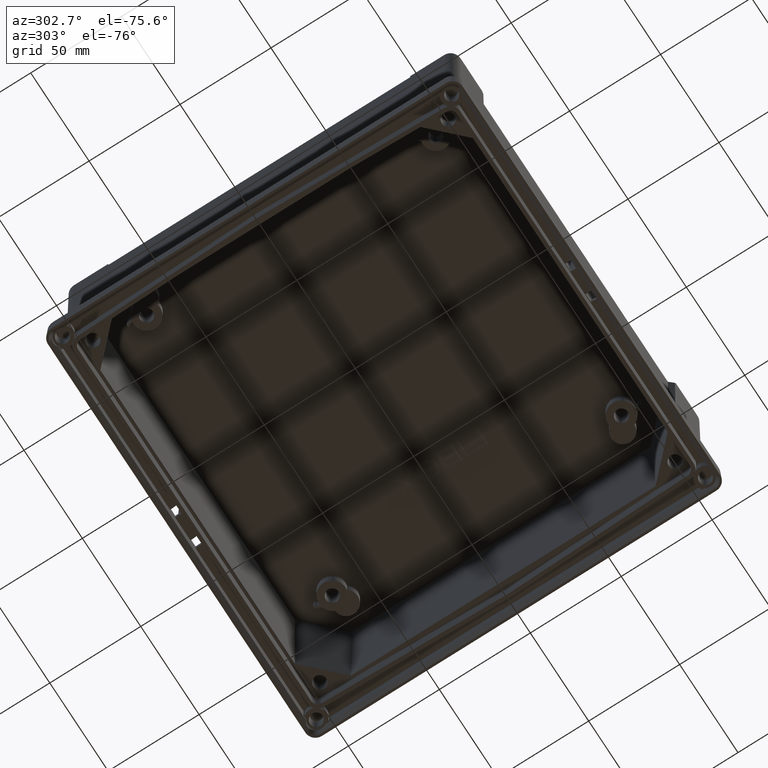
[diagram: clean part render]
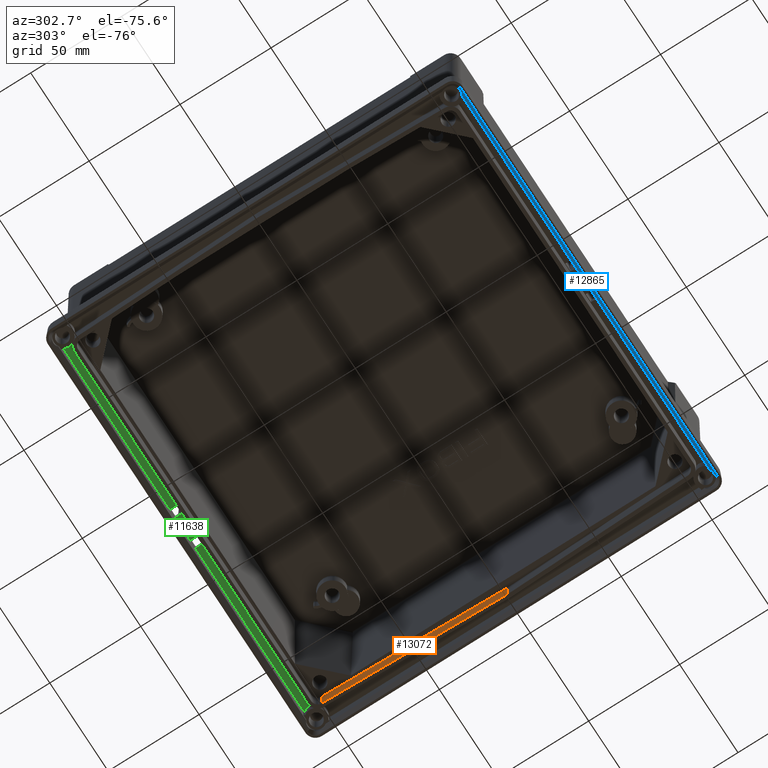
[diagram: same view with three faces highlighted in distinct colors, each labeled with its STEP entity id]
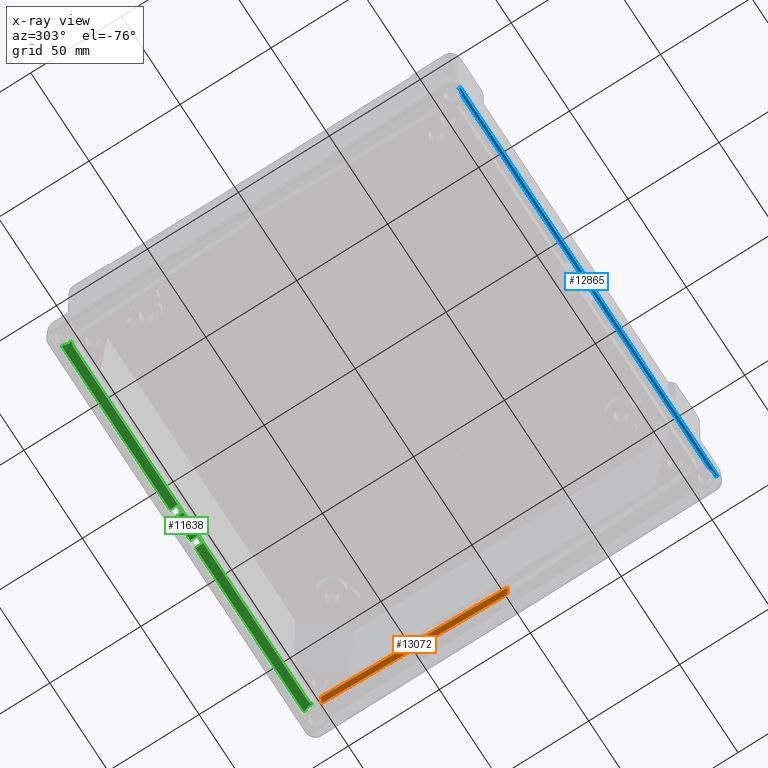
[diagram: x-ray of the same camera — body ghosted, the three highlighted faces saturated]
A machine part, auxiliary view with three faces highlighted in distinct colors.
The next image is the same camera in x-ray (body ghosted, the three faces saturated) — at least one of them is partly hidden behind the body in this view.
Their STEP definitions:

[orange] entity #13072 — the highlighted planar face has unit normal (-0.9997, -0.0262, 0).
#8561 = DIRECTION ( 'NONE',  ( 0.02617694830787311400, -0.9996573249755572600, 0.0000000000000000000 ) ) ;
#8562 = VECTOR ( 'NONE', #8561, 1000.000000000000200 ) ;
#8563 = CARTESIAN_POINT ( 'NONE',  ( 79.29034707335566200, 50.35230874206308700, 3.599999999999999600 ) ) ;
#8564 = LINE ( 'NONE', #8563, #8562 ) ;
#8565 = DIRECTION ( 'NONE',  ( 0.02617694830787310700, -0.9996573249755572600, 0.0000000000000000000 ) ) ;
#8566 = DIRECTION ( 'NONE',  ( -0.9996573249755573700, -0.02617694830787311100, 0.0000000000000000000 ) ) ;
#8567 = AXIS2_PLACEMENT_3D ( 'NONE', #8568, #8566, #8565 ) ;
#8568 = CARTESIAN_POINT ( 'NONE',  ( 77.97182546580852100, 100.7046174841261900, 3.599999999999999600 ) ) ;
#8569 = PLANE ( 'NONE',  #8567 ) ;
#8570 = FACE_OUTER_BOUND ( 'NONE', #13073, .T. ) ;
#8575 = CARTESIAN_POINT ( 'NONE',  ( 80.60886868090281600, 8.883809777978974200E-016, 3.599999999999999600 ) ) ;
#8576 = DIRECTION ( 'NONE',  ( 0.0000000000000000000, 5.828898570632487500E-016, 1.000000000000000000 ) ) ;
#8577 = VECTOR ( 'NONE', #8576, 1000.000000000000000 ) ;
#8578 = CARTESIAN_POINT ( 'NONE',  ( 80.60886868090281600, 3.552713678800500900E-015, 9.694999999999998500 ) ) ;
#8579 = LINE ( 'NONE', #8578, #8577 ) ;
#8580 = CARTESIAN_POINT ( 'NONE',  ( 80.60886868090281600, 7.105427357601001900E-015, 15.78999999999999900 ) ) ;
#8717 = CARTESIAN_POINT ( 'NONE',  ( 77.97182546580852100, 100.7046174841261700, 3.599999999999999200 ) ) ;
#8719 = LINE ( 'NONE', #8774, #8773 ) ;
#8767 = DIRECTION ( 'NONE',  ( 0.0000000000000000000, -1.138456752076657800E-015, 1.000000000000000000 ) ) ;
#8768 = VECTOR ( 'NONE', #8767, 1000.000000000000000 ) ;
#8769 = CARTESIAN_POINT ( 'NONE',  ( 77.97182546580852100, 100.7046174841261700, 9.694999999999998500 ) ) ;
#8770 = LINE ( 'NONE', #8769, #8768 ) ;
#8771 = CARTESIAN_POINT ( 'NONE',  ( 77.97182546580852100, 100.7046174841261700, 15.78999999999999900 ) ) ;
#8772 = DIRECTION ( 'NONE',  ( 0.02617694830787325700, -0.9996573249755572600, 0.0000000000000000000 ) ) ;
#8773 = VECTOR ( 'NONE', #8772, 1000.000000000000200 ) ;
#8774 = CARTESIAN_POINT ( 'NONE',  ( 79.29034707335566200, 50.35230874206309400, 15.78999999999999900 ) ) ;
#13065 = VERTEX_POINT ( 'NONE', #8580 ) ;
#13067 = EDGE_CURVE ( 'NONE', #13068, #13065, #8579, .T. ) ;
#13068 = VERTEX_POINT ( 'NONE', #8575 ) ;
#13072 = ADVANCED_FACE ( 'NONE', ( #8570 ), #8569, .T. ) ;
#13073 = EDGE_LOOP ( 'NONE', ( #13074, #13131, #13132, #13135 ) ) ;
#13074 = ORIENTED_EDGE ( 'NONE', *, *, #13075, .T. ) ;
#13075 = EDGE_CURVE ( 'NONE', #13130, #13068, #8564, .T. ) ;
#13130 = VERTEX_POINT ( 'NONE', #8717 ) ;
#13131 = ORIENTED_EDGE ( 'NONE', *, *, #13067, .T. ) ;
#13132 = ORIENTED_EDGE ( 'NONE', *, *, #13133, .F. ) ;
#13133 = EDGE_CURVE ( 'NONE', #13134, #13065, #8719, .T. ) ;
#13134 = VERTEX_POINT ( 'NONE', #8771 ) ;
#13135 = ORIENTED_EDGE ( 'NONE', *, *, #13136, .F. ) ;
#13136 = EDGE_CURVE ( 'NONE', #13130, #13134, #8770, .T. ) ;

[blue] entity #12865 — the highlighted planar face has unit normal (0, 0.829, -0.5592).
#6326 = CARTESIAN_POINT ( 'NONE',  ( 84.90335045139383400, -111.5451771669170000, 1.860351354709297800 ) ) ;
#6330 = CARTESIAN_POINT ( 'NONE',  ( 84.90335045139383400, -111.5451771669170000, 1.860351354709297800 ) ) ;
#6331 = CARTESIAN_POINT ( 'NONE',  ( 84.55252322552212300, -111.6644673196975200, 1.683496430258574000 ) ) ;
#6332 = CARTESIAN_POINT ( 'NONE',  ( 84.16416472718688600, -111.7484585158678700, 1.558974361186768800 ) ) ;
#6333 = CARTESIAN_POINT ( 'NONE',  ( 83.56092056206469500, -111.7953636714809100, 1.489434608252806500 ) ) ;
#6334 = CARTESIAN_POINT ( 'NONE',  ( 83.35334270316539600, -111.7979291504017600, 1.485631129264900700 ) ) ;
#6335 = CARTESIAN_POINT ( 'NONE',  ( 82.94927175533483400, -111.7763792302102800, 1.517580199815235000 ) ) ;
#6336 = CARTESIAN_POINT ( 'NONE',  ( 82.75038447002431500, -111.7526251245848500, 1.552797109697054100 ) ) ;
#6337 = CARTESIAN_POINT ( 'NONE',  ( 82.36034360970984400, -111.6808942344339100, 1.659142527671443100 ) ) ;
#6338 = CARTESIAN_POINT ( 'NONE',  ( 82.17550206766918600, -111.6341794351187100, 1.728400065793662900 ) ) ;
#6339 = CARTESIAN_POINT ( 'NONE',  ( 81.82236517597664300, -111.5231137744263500, 1.893061679278287900 ) ) ;
#6340 = CARTESIAN_POINT ( 'NONE',  ( 81.65297031223744300, -111.4581890851550700, 1.989316489506557800 ) ) ;
#6341 = CARTESIAN_POINT ( 'NONE',  ( 81.17533392175380400, -111.2446202327913800, 2.305945334111033000 ) ) ;
#6342 = CARTESIAN_POINT ( 'NONE',  ( 80.89827966475753800, -111.0791519151598100, 2.551262203304325300 ) ) ;
#6343 = CARTESIAN_POINT ( 'NONE',  ( 80.64953087988762100, -110.8978859825032700, 2.819999999991779700 ) ) ;
#6344 = B_SPLINE_CURVE_WITH_KNOTS ( 'NONE', 3,
 ( #6343, #6342, #6341, #6340, #6339, #6338, #6337, #6336, #6335, #6334, #6333, #6332, #6331, #6330 ),
 .UNSPECIFIED., .F., .F.,
 ( 4, 2, 2, 2, 2, 2, 4 ),
 ( 3.791536716063408000E-015, 0.001215469552151673200, 0.001823204328225606300, 0.002430939104299539900, 0.003038673880373472900, 0.003646408656447406300, 0.004861878208595234900 ),
 .UNSPECIFIED. ) ;
#6382 = CARTESIAN_POINT ( 'NONE',  ( 80.64953087988762100, -110.8978859825032700, 2.819999999991779700 ) ) ;
#6593 = CARTESIAN_POINT ( 'NONE',  ( 84.90335140398063600, -112.7999999999997800, -8.131516293641283300E-016 ) ) ;
#6824 = DIRECTION ( 'NONE',  ( 4.947541758675265800E-014, -0.5591929034707454600, -0.8290375725550425100 ) ) ;
#6825 = VECTOR ( 'NONE', #6824, 1000.000000000000200 ) ;
#6826 = CARTESIAN_POINT ( 'NONE',  ( 84.90335045139494200, -112.1725885834600400, 0.9301756773614312500 ) ) ;
#6831 = LINE ( 'NONE', #6826, #6825 ) ;
#7426 = CARTESIAN_POINT ( 'NONE',  ( -131.2495308798876000, -110.8978859825032400, 2.819999999991805500 ) ) ;
#7653 = CARTESIAN_POINT ( 'NONE',  ( -132.9603436097099800, -111.6808942344339500, 1.659142527671441300 ) ) ;
#7654 = CARTESIAN_POINT ( 'NONE',  ( -132.7755020676692900, -111.6341794351187500, 1.728400065793667600 ) ) ;
#7655 = CARTESIAN_POINT ( 'NONE',  ( -132.4223651759766900, -111.5231137744263800, 1.893061679278290800 ) ) ;
#7656 = CARTESIAN_POINT ( 'NONE',  ( -132.2529703122374900, -111.4581890851551100, 1.989316489506565100 ) ) ;
#7657 = CARTESIAN_POINT ( 'NONE',  ( -131.7753339217538000, -111.2446202327914100, 2.305945334111039200 ) ) ;
#7658 = CARTESIAN_POINT ( 'NONE',  ( -131.4982796647575500, -111.0791519151598000, 2.551262203304320400 ) ) ;
#7659 = CARTESIAN_POINT ( 'NONE',  ( -131.2495308798876000, -110.8978859825032400, 2.819999999991805500 ) ) ;
#7661 = B_SPLINE_CURVE_WITH_KNOTS ( 'NONE', 3,
 ( #7659, #7658, #7657, #7656, #7655, #7654, #7653, #7709, #7708, #7707, #7706, #7705, #7704, #7703 ),
 .UNSPECIFIED., .F., .F.,
 ( 4, 2, 2, 2, 2, 2, 4 ),
 ( 3.819311272448363800E-015, 0.001215469552151777900, 0.001823204328225717600, 0.002430939104299657900, 0.003038673880373597800, 0.003646408656447537200, 0.004861878208595337200 ),
 .UNSPECIFIED. ) ;
#7662 = CARTESIAN_POINT ( 'NONE',  ( -135.5033504513939400, -111.5451771669202800, 1.860351354711532700 ) ) ;
#7703 = CARTESIAN_POINT ( 'NONE',  ( -135.5033504513939400, -111.5451771669202800, 1.860351354711532700 ) ) ;
#7704 = CARTESIAN_POINT ( 'NONE',  ( -135.1525232255223700, -111.6644673197040900, 1.683496430263007800 ) ) ;
#7705 = CARTESIAN_POINT ( 'NONE',  ( -134.7641647271869400, -111.7484585158678500, 1.558974361186780300 ) ) ;
#7706 = CARTESIAN_POINT ( 'NONE',  ( -134.1609205620647500, -111.7953636714809100, 1.489434608252800500 ) ) ;
#7707 = CARTESIAN_POINT ( 'NONE',  ( -133.9533427031654200, -111.7979291504017100, 1.485631129264906000 ) ) ;
#7708 = CARTESIAN_POINT ( 'NONE',  ( -133.5492717553349300, -111.7763792302103100, 1.517580199815229800 ) ) ;
#7709 = CARTESIAN_POINT ( 'NONE',  ( -133.3503844700243500, -111.7526251245848000, 1.552797109697056500 ) ) ;
#8127 = DIRECTION ( 'NONE',  ( -1.000000000000000000, 6.549244575489085000E-017, 5.116597324600847600E-017 ) ) ;
#8128 = VECTOR ( 'NONE', #8127, 1000.000000000000000 ) ;
#8129 = CARTESIAN_POINT ( 'NONE',  ( -25.30000000000000400, -110.8978859825043600, 2.819999999999991000 ) ) ;
#8130 = LINE ( 'NONE', #8129, #8128 ) ;
#8135 = DIRECTION ( 'NONE',  ( 0.0000000000000000000, -0.5591929034707452400, -0.8290375725550426200 ) ) ;
#8136 = VECTOR ( 'NONE', #8135, 1000.000000000000200 ) ;
#8137 = CARTESIAN_POINT ( 'NONE',  ( -135.5033504513949700, -112.1725885834600400, 0.9301756773614424700 ) ) ;
#8141 = LINE ( 'NONE', #8137, #8136 ) ;
#8161 = CARTESIAN_POINT ( 'NONE',  ( -135.5033514039806200, -112.8000000000000000, 5.421010862427522200E-017 ) ) ;
#8162 = DIRECTION ( 'NONE',  ( 0.0000000000000000000, 0.5591929034707464600, 0.8290375725550419600 ) ) ;
#8163 = DIRECTION ( 'NONE',  ( 0.0000000000000000000, 0.8290375725550419600, -0.5591929034707464600 ) ) ;
#8164 = AXIS2_PLACEMENT_3D ( 'NONE', #8166, #8163, #8162 ) ;
#8166 = CARTESIAN_POINT ( 'NONE',  ( 135.5033504513949700, -110.8978859825043500, 2.819999999999999800 ) ) ;
#8167 = PLANE ( 'NONE',  #8164 ) ;
#8168 = FACE_OUTER_BOUND ( 'NONE', #12866, .T. ) ;
#8335 = LINE ( 'NONE', #8379, #8378 ) ;
#8377 = DIRECTION ( 'NONE',  ( -1.000000000000000000, 0.0000000000000000000, 0.0000000000000000000 ) ) ;
#8378 = VECTOR ( 'NONE', #8377, 1000.000000000000000 ) ;
#8379 = CARTESIAN_POINT ( 'NONE',  ( -25.29999999999999700, -112.8000000000000000, 0.0000000000000000000 ) ) ;
#12160 = VERTEX_POINT ( 'NONE', #6326 ) ;
#12162 = EDGE_CURVE ( 'NONE', #12176, #12160, #6344, .T. ) ;
#12176 = VERTEX_POINT ( 'NONE', #6382 ) ;
#12251 = VERTEX_POINT ( 'NONE', #6593 ) ;
#12312 = EDGE_CURVE ( 'NONE', #12160, #12251, #6831, .T. ) ;
#12564 = VERTEX_POINT ( 'NONE', #7426 ) ;
#12620 = EDGE_CURVE ( 'NONE', #12564, #12621, #7661, .T. ) ;
#12621 = VERTEX_POINT ( 'NONE', #7662 ) ;
#12828 = EDGE_CURVE ( 'NONE', #12176, #12564, #8130, .T. ) ;
#12859 = EDGE_CURVE ( 'NONE', #12621, #12881, #8141, .T. ) ;
#12865 = ADVANCED_FACE ( 'NONE', ( #8168 ), #8167, .T. ) ;
#12866 = EDGE_LOOP ( 'NONE', ( #12867, #12868, #12869, #12930, #12932, #12933 ) ) ;
#12867 = ORIENTED_EDGE ( 'NONE', *, *, #12828, .F. ) ;
#12868 = ORIENTED_EDGE ( 'NONE', *, *, #12162, .T. ) ;
#12869 = ORIENTED_EDGE ( 'NONE', *, *, #12312, .T. ) ;
#12881 = VERTEX_POINT ( 'NONE', #8161 ) ;
#12930 = ORIENTED_EDGE ( 'NONE', *, *, #12931, .T. ) ;
#12931 = EDGE_CURVE ( 'NONE', #12251, #12881, #8335, .T. ) ;
#12932 = ORIENTED_EDGE ( 'NONE', *, *, #12859, .F. ) ;
#12933 = ORIENTED_EDGE ( 'NONE', *, *, #12620, .F. ) ;

[green] entity #11638 — the highlighted planar face has unit normal (0, -0.2079, -0.9781).
#40 = VERTEX_POINT ( 'NONE', #14231 ) ;
#42 = EDGE_CURVE ( 'NONE', #40, #17048, #14230, .T. ) ;
#523 = CARTESIAN_POINT ( 'NONE',  ( 77.75596629610157600, 105.5572010452466000, 11.59804330927611800 ) ) ;
#642 = CARTESIAN_POINT ( 'NONE',  ( 78.00948076974518100, 109.2043985421325900, 10.82280754959379900 ) ) ;
#643 = CARTESIAN_POINT ( 'NONE',  ( 77.77039022681962900, 108.5016256978360900, 10.97218652901254800 ) ) ;
#644 = CARTESIAN_POINT ( 'NONE',  ( 77.68492911141781600, 108.1411990556428200, 11.04879757684937200 ) ) ;
#645 = CARTESIAN_POINT ( 'NONE',  ( 77.60866272830584500, 107.5867868268215500, 11.16664153395544900 ) ) ;
#646 = CARTESIAN_POINT ( 'NONE',  ( 77.59204033688995100, 107.3992833885582200, 11.20649662006544400 ) ) ;
#647 = CARTESIAN_POINT ( 'NONE',  ( 77.57701752277732500, 107.0274577344686100, 11.28553060263944600 ) ) ;
#648 = CARTESIAN_POINT ( 'NONE',  ( 77.57844058884229800, 106.8421820240550900, 11.32491217064648800 ) ) ;
#649 = CARTESIAN_POINT ( 'NONE',  ( 77.60902648905454300, 106.2882315349130800, 11.44265798195394100 ) ) ;
#650 = CARTESIAN_POINT ( 'NONE',  ( 77.66425595328776400, 105.9214155656787000, 11.52062712310172900 ) ) ;
#651 = CARTESIAN_POINT ( 'NONE',  ( 77.75596629610157600, 105.5572010452466000, 11.59804330927611800 ) ) ;
#656 = B_SPLINE_CURVE_WITH_KNOTS ( 'NONE', 3,
 ( #651, #650, #649, #648, #647, #646, #645, #644, #643, #642, #701, #700 ),
 .UNSPECIFIED., .F., .F.,
 ( 4, 2, 2, 2, 2, 4 ),
 ( 7.400603605116668900E-016, 0.001134101956673470000, 0.001701152935009814600, 0.002268203913346159400, 0.003402305870018888500, 0.004536407826691618100 ),
 .UNSPECIFIED. ) ;
#700 = CARTESIAN_POINT ( 'NONE',  ( 78.35228672576585000, 109.8759250097094900, 10.68007019334034700 ) ) ;
#701 = CARTESIAN_POINT ( 'NONE',  ( 78.16452704401409300, 109.5488279130070700, 10.74959682685480700 ) ) ;
#1163 = CARTESIAN_POINT ( 'NONE',  ( 77.92467003382965600, 110.6289960574179100, 10.52000000000000000 ) ) ;
#1164 = CARTESIAN_POINT ( 'NONE',  ( 78.01408164276404000, 110.6289960647016500, 10.51999999845179600 ) ) ;
#1165 = CARTESIAN_POINT ( 'NONE',  ( 78.10168205599880800, 110.6045321676444800, 10.52519996029530900 ) ) ;
#1166 = CARTESIAN_POINT ( 'NONE',  ( 78.25223353604498300, 110.5151563555398200, 10.54419737561274500 ) ) ;
#1167 = CARTESIAN_POINT ( 'NONE',  ( 78.31502671502750000, 110.4502692668890700, 10.55798955207313300 ) ) ;
#1168 = CARTESIAN_POINT ( 'NONE',  ( 78.44230510618389500, 110.2200841701985300, 10.60691690477333900 ) ) ;
#1169 = CARTESIAN_POINT ( 'NONE',  ( 78.43976131508894400, 110.0283149498582600, 10.64767871088301600 ) ) ;
#1170 = CARTESIAN_POINT ( 'NONE',  ( 78.35228672576585000, 109.8759250097094900, 10.68007019334034700 ) ) ;
#1171 = B_SPLINE_CURVE_WITH_KNOTS ( 'NONE', 3,
 ( #1170, #1169, #1168, #1167, #1166, #1165, #1164, #1163 ),
 .UNSPECIFIED., .F., .F.,
 ( 4, 2, 2, 4 ),
 ( 2.198831107213662000E-012, 0.0005283641947736899300, 0.0007925462910611194200, 0.001056728387348548900 ),
 .UNSPECIFIED. ) ;
#1200 = CARTESIAN_POINT ( 'NONE',  ( 78.35228672576585000, 109.8759250097094900, 10.68007019334034700 ) ) ;
#1861 = CARTESIAN_POINT ( 'NONE',  ( 77.92467003382965600, 110.6289960574179100, 10.52000000000000000 ) ) ;
#2547 = CARTESIAN_POINT ( 'NONE',  ( -14.32370143678608100, 110.6289960574178900, 10.52000000000000100 ) ) ;
#2607 = DIRECTION ( 'NONE',  ( -1.000000000000000000, 0.0000000000000000000, 0.0000000000000000000 ) ) ;
#2608 = VECTOR ( 'NONE', #2607, 1000.000000000000000 ) ;
#2609 = CARTESIAN_POINT ( 'NONE',  ( -16.55000000000000800, 106.6944970723780700, 11.35630357615425900 ) ) ;
#2610 = LINE ( 'NONE', #2609, #2608 ) ;
#2642 = CARTESIAN_POINT ( 'NONE',  ( -18.80550292762194400, 106.6944970723780700, 11.35630357615425900 ) ) ;
#2726 = CARTESIAN_POINT ( 'NONE',  ( -14.29449707237807800, 106.6944970723780700, 11.35630357615425900 ) ) ;
#2731 = DIRECTION ( 'NONE',  ( 0.007260244874171455600, -0.9781218207488707700, 0.2079062111128020800 ) ) ;
#2732 = VECTOR ( 'NONE', #2731, 1000.000000000000100 ) ;
#2733 = CARTESIAN_POINT ( 'NONE',  ( -14.30909925458208000, 108.6617465648980000, 10.93815178807713200 ) ) ;
#2734 = LINE ( 'NONE', #2733, #2732 ) ;
#2778 = DIRECTION ( 'NONE',  ( -0.007260244874171455600, -0.9781218207488707700, 0.2079062111128020800 ) ) ;
#2779 = VECTOR ( 'NONE', #2778, 1000.000000000000100 ) ;
#2780 = CARTESIAN_POINT ( 'NONE',  ( -18.79090074541794300, 108.6617465648980000, 10.93815178807713200 ) ) ;
#2781 = LINE ( 'NONE', #2780, #2779 ) ;
#2783 = CARTESIAN_POINT ( 'NONE',  ( -18.77629856321394200, 110.6289960574178900, 10.52000000000000100 ) ) ;
#2972 = DIRECTION ( 'NONE',  ( 0.007260244874171455600, -0.9781218207488707700, 0.2079062111128020800 ) ) ;
#2973 = VECTOR ( 'NONE', #2972, 1000.000000000000100 ) ;
#2974 = CARTESIAN_POINT ( 'NONE',  ( -31.70909925458208200, 108.6617465648980000, 10.93815178807713200 ) ) ;
#2975 = LINE ( 'NONE', #2974, #2973 ) ;
#3007 = CARTESIAN_POINT ( 'NONE',  ( -31.69449707237808400, 106.6944970723780700, 11.35630357615425900 ) ) ;
#3048 = CARTESIAN_POINT ( 'NONE',  ( -31.72370143678608700, 110.6289960574178900, 10.52000000000000100 ) ) ;
#3098 = DIRECTION ( 'NONE',  ( -1.000000000000000000, 0.0000000000000000000, 0.0000000000000000000 ) ) ;
#3099 = VECTOR ( 'NONE', #3098, 1000.000000000000000 ) ;
#3100 = CARTESIAN_POINT ( 'NONE',  ( -33.95000000000002400, 106.6944970723780700, 11.35630357615425900 ) ) ;
#3101 = LINE ( 'NONE', #3100, #3099 ) ;
#3106 = CARTESIAN_POINT ( 'NONE',  ( -36.20550292762195000, 106.6944970723780700, 11.35630357615425900 ) ) ;
#4022 = VERTEX_POINT ( 'NONE', #14457 ) ;
#4104 = EDGE_CURVE ( 'NONE', #15719, #4022, #14624, .T. ) ;
#4926 = CARTESIAN_POINT ( 'NONE',  ( -128.5246732795710000, 110.6289960640745600, 10.52000001808233900 ) ) ;
#5112 = B_SPLINE_CURVE_WITH_KNOTS ( 'NONE', 3,
 ( #5153, #5152, #5151, #5150, #5149, #5148, #5147, #5146 ),
 .UNSPECIFIED., .F., .F.,
 ( 4, 2, 2, 4 ),
 ( 0.0000000000000000000, 0.0005283640478878339100, 0.0007925460718317699000, 0.001056728095775706000 ),
 .UNSPECIFIED. ) ;
#5146 = CARTESIAN_POINT ( 'NONE',  ( -128.5246732795710000, 110.6289960640745600, 10.52000001808233900 ) ) ;
#5147 = CARTESIAN_POINT ( 'NONE',  ( -128.6140816182804100, 110.6289960647017100, 10.51999999845180200 ) ) ;
#5148 = CARTESIAN_POINT ( 'NONE',  ( -128.7016822842995800, 110.6045320771065000, 10.52519997953975100 ) ) ;
#5149 = CARTESIAN_POINT ( 'NONE',  ( -128.8522336825460300, 110.5151562235742800, 10.54419740366289400 ) ) ;
#5150 = CARTESIAN_POINT ( 'NONE',  ( -128.9150268221390000, 110.4502691263095400, 10.55798958195424000 ) ) ;
#5151 = CARTESIAN_POINT ( 'NONE',  ( -129.0423051042625100, 110.2200840674073100, 10.60691692662230200 ) ) ;
#5152 = CARTESIAN_POINT ( 'NONE',  ( -129.0397612911352200, 110.0283149081278000, 10.64767871975311800 ) ) ;
#5153 = CARTESIAN_POINT ( 'NONE',  ( -128.9522853025134200, 109.8759225137053500, 10.68007074908013700 ) ) ;
#5154 = CARTESIAN_POINT ( 'NONE',  ( -128.9522853025134200, 109.8759225137053500, 10.68007074908013700 ) ) ;
#5228 = CARTESIAN_POINT ( 'NONE',  ( -128.3559662961005800, 105.5572010452471000, 11.59804330927857100 ) ) ;
#5229 = CARTESIAN_POINT ( 'NONE',  ( -128.3559662961005800, 105.5572010452471000, 11.59804330927857100 ) ) ;
#5230 = B_SPLINE_CURVE_WITH_KNOTS ( 'NONE', 3,
 ( #5228, #5271, #5270, #5269, #5268, #5267, #5266, #5265, #5264, #5263, #5262, #5261 ),
 .UNSPECIFIED., .F., .F.,
 ( 4, 2, 2, 2, 2, 4 ),
 ( 6.406745034707793200E-016, 0.001134101236421894400, 0.001701151854632501200, 0.002268202472843108000, 0.003402303709264321900, 0.004536404945685535900 ),
 .UNSPECIFIED. ) ;
#5261 = CARTESIAN_POINT ( 'NONE',  ( -128.9522853025134200, 109.8759225137053500, 10.68007074908013700 ) ) ;
#5262 = CARTESIAN_POINT ( 'NONE',  ( -128.7645258991610100, 109.5488255444073900, 10.74959733026133100 ) ) ;
#5263 = CARTESIAN_POINT ( 'NONE',  ( -128.6094798794540000, 109.2043963452933500, 10.82280801652579400 ) ) ;
#5264 = CARTESIAN_POINT ( 'NONE',  ( -128.3703897505252800, 108.5016238777857900, 10.97218691585556100 ) ) ;
#5265 = CARTESIAN_POINT ( 'NONE',  ( -128.2849287966356300, 108.1411974360501600, 11.04879792106464200 ) ) ;
#5266 = CARTESIAN_POINT ( 'NONE',  ( -128.2086625950848000, 107.5867855240187200, 11.16664181083495000 ) ) ;
#5267 = CARTESIAN_POINT ( 'NONE',  ( -128.1920402550609000, 107.3992822054221000, 11.20649687158739700 ) ) ;
#5268 = CARTESIAN_POINT ( 'NONE',  ( -128.1770175187377600, 107.0274567923403300, 11.28553080293360900 ) ) ;
#5269 = CARTESIAN_POINT ( 'NONE',  ( -128.1784406118311800, 106.8421812015816800, 11.32491234546521300 ) ) ;
#5270 = CARTESIAN_POINT ( 'NONE',  ( -128.2090265596280300, 106.2882310690239200, 11.44265808097834600 ) ) ;
#5271 = CARTESIAN_POINT ( 'NONE',  ( -128.2642560115317000, 105.9214153343714000, 11.52062717226761100 ) ) ;
#5413 = DIRECTION ( 'NONE',  ( -1.000000000000000000, -6.933392932706485900E-017, 1.733348233176621500E-017 ) ) ;
#5414 = VECTOR ( 'NONE', #5413, 1000.000000000000000 ) ;
#5415 = CARTESIAN_POINT ( 'NONE',  ( -25.30000000000001800, 106.4219571827918700, 11.41423371800263100 ) ) ;
#5416 = LINE ( 'NONE', #5415, #5414 ) ;
#5433 = CARTESIAN_POINT ( 'NONE',  ( -125.3793402487661800, 106.4219571827918700, 11.41423371800263100 ) ) ;
#5434 = CARTESIAN_POINT ( 'NONE',  ( -126.4400604634335400, 106.4219571827918700, 11.41423371800262900 ) ) ;
#5435 = CARTESIAN_POINT ( 'NONE',  ( -127.4597256223131200, 106.1257286037362200, 11.47719904623509500 ) ) ;
#5436 = CARTESIAN_POINT ( 'NONE',  ( -128.3559662961005800, 105.5572010452471000, 11.59804330927857100 ) ) ;
#5437 =( BOUNDED_CURVE ( )  B_SPLINE_CURVE ( 3, ( #5436, #5435, #5434, #5433 ),
 .UNSPECIFIED., .F., .T. ) 
 B_SPLINE_CURVE_WITH_KNOTS ( ( 4, 4 ),
 ( 5.522449753681946100, 6.092820127101121300 ),
 .UNSPECIFIED. ) 
 CURVE ( )  GEOMETRIC_REPRESENTATION_ITEM ( )  RATIONAL_B_SPLINE_CURVE ( ( 1.000000000000000000, 0.9730730463860283200, 0.9730730463860283200, 1.000000000000000000 ) ) 
 REPRESENTATION_ITEM ( '' )  );
#5439 = CARTESIAN_POINT ( 'NONE',  ( -125.3793402487661800, 106.4219571827918700, 11.41423371800263100 ) ) ;
#5441 = LINE ( 'NONE', #5508, #5507 ) ;
#5442 = DIRECTION ( 'NONE',  ( -1.000000000000000000, -1.504393751627442200E-016, 3.760984379068605600E-017 ) ) ;
#5443 = VECTOR ( 'NONE', #5442, 1000.000000000000000 ) ;
#5444 = CARTESIAN_POINT ( 'NONE',  ( 31.80048577418036300, 110.6289960574179100, 10.52000000000000000 ) ) ;
#5450 = LINE ( 'NONE', #5444, #5443 ) ;
#5456 = DIRECTION ( 'NONE',  ( -1.000000000000000000, 0.0000000000000000000, 0.0000000000000000000 ) ) ;
#5457 = VECTOR ( 'NONE', #5456, 1000.000000000000000 ) ;
#5458 = CARTESIAN_POINT ( 'NONE',  ( -82.35048577418038500, 110.6289960574178900, 10.52000000000000100 ) ) ;
#5459 = LINE ( 'NONE', #5458, #5457 ) ;
#5474 = FACE_OUTER_BOUND ( 'NONE', #11639, .T. ) ;
#5506 = DIRECTION ( 'NONE',  ( 1.000000000000000000, 0.0000000000000000000, 0.0000000000000000000 ) ) ;
#5507 = VECTOR ( 'NONE', #5506, 1000.000000000000000 ) ;
#5508 = CARTESIAN_POINT ( 'NONE',  ( -25.25000000000001400, 110.6289960574178900, 10.52000000000000100 ) ) ;
#5536 = DIRECTION ( 'NONE',  ( 0.0000000000000000000, 0.9781476007338055800, -0.2079116908177596500 ) ) ;
#5537 = DIRECTION ( 'NONE',  ( 0.0000000000000000000, -0.2079116908177596500, -0.9781476007338055800 ) ) ;
#5538 = AXIS2_PLACEMENT_3D ( 'NONE', #5540, #5537, #5536 ) ;
#5540 = CARTESIAN_POINT ( 'NONE',  ( 135.5033504513949700, 109.3000000000000000, 10.80248683243776500 ) ) ;
#5541 = PLANE ( 'NONE',  #5538 ) ;
#11277 = VERTEX_POINT ( 'NONE', #4926 ) ;
#11330 = EDGE_CURVE ( 'NONE', #11331, #11277, #5112, .T. ) ;
#11331 = VERTEX_POINT ( 'NONE', #5154 ) ;
#11364 = EDGE_CURVE ( 'NONE', #11365, #11331, #5230, .T. ) ;
#11365 = VERTEX_POINT ( 'NONE', #5229 ) ;
#11520 = EDGE_CURVE ( 'NONE', #4022, #11538, #5416, .T. ) ;
#11537 = EDGE_CURVE ( 'NONE', #11365, #11538, #5437, .T. ) ;
#11538 = VERTEX_POINT ( 'NONE', #5439 ) ;
#11554 = ORIENTED_EDGE ( 'NONE', *, *, #11537, .F. ) ;
#11555 = ORIENTED_EDGE ( 'NONE', *, *, #11364, .T. ) ;
#11559 = EDGE_CURVE ( 'NONE', #40, #11277, #5459, .T. ) ;
#11571 = EDGE_CURVE ( 'NONE', #16347, #16714, #5450, .T. ) ;
#11576 = EDGE_CURVE ( 'NONE', #16985, #16862, #5441, .T. ) ;
#11625 = ORIENTED_EDGE ( 'NONE', *, *, #11330, .T. ) ;
#11626 = ORIENTED_EDGE ( 'NONE', *, *, #11559, .F. ) ;
#11627 = ORIENTED_EDGE ( 'NONE', *, *, #42, .T. ) ;
#11628 = ORIENTED_EDGE ( 'NONE', *, *, #17051, .F. ) ;
#11629 = ORIENTED_EDGE ( 'NONE', *, *, #16950, .F. ) ;
#11630 = ORIENTED_EDGE ( 'NONE', *, *, #11576, .T. ) ;
#11631 = ORIENTED_EDGE ( 'NONE', *, *, #16865, .T. ) ;
#11632 = ORIENTED_EDGE ( 'NONE', *, *, #16774, .F. ) ;
#11633 = ORIENTED_EDGE ( 'NONE', *, *, #16814, .F. ) ;
#11638 = ADVANCED_FACE ( 'NONE', ( #5474 ), #5541, .T. ) ;
#11639 = EDGE_LOOP ( 'NONE', ( #11640, #11641, #11642, #11643, #11644, #11554, #11555, #11625, #11626, #11627, #11628, #11629, #11630, #11631, #11632, #11633 ) ) ;
#11640 = ORIENTED_EDGE ( 'NONE', *, *, #11571, .F. ) ;
#11641 = ORIENTED_EDGE ( 'NONE', *, *, #16043, .F. ) ;
#11642 = ORIENTED_EDGE ( 'NONE', *, *, #15782, .F. ) ;
#11643 = ORIENTED_EDGE ( 'NONE', *, *, #4104, .T. ) ;
#11644 = ORIENTED_EDGE ( 'NONE', *, *, #11520, .T. ) ;
#14227 = DIRECTION ( 'NONE',  ( -0.007260244874171455600, -0.9781218207488707700, 0.2079062111128020800 ) ) ;
#14228 = VECTOR ( 'NONE', #14227, 1000.000000000000100 ) ;
#14229 = CARTESIAN_POINT ( 'NONE',  ( -36.19090074541794900, 108.6617465648980000, 10.93815178807713200 ) ) ;
#14230 = LINE ( 'NONE', #14229, #14228 ) ;
#14231 = CARTESIAN_POINT ( 'NONE',  ( -36.17629856321394800, 110.6289960574178900, 10.52000000000000100 ) ) ;
#14457 = CARTESIAN_POINT ( 'NONE',  ( 74.77934024876617500, 106.4219571827918700, 11.41423371800262900 ) ) ;
#14620 = CARTESIAN_POINT ( 'NONE',  ( 74.77934024876617500, 106.4219571827918700, 11.41423371800262900 ) ) ;
#14621 = CARTESIAN_POINT ( 'NONE',  ( 75.84006046343384400, 106.4219571827918700, 11.41423371800262900 ) ) ;
#14622 = CARTESIAN_POINT ( 'NONE',  ( 76.85972562231363300, 106.1257286037360400, 11.47719904623513000 ) ) ;
#14623 = CARTESIAN_POINT ( 'NONE',  ( 77.75596629610157600, 105.5572010452466000, 11.59804330927611800 ) ) ;
#14624 =( BOUNDED_CURVE ( )  B_SPLINE_CURVE ( 3, ( #14623, #14622, #14621, #14620 ),
 .UNSPECIFIED., .F., .T. ) 
 B_SPLINE_CURVE_WITH_KNOTS ( ( 4, 4 ),
 ( 2.380857100092003800, 2.951227473511328200 ),
 .UNSPECIFIED. ) 
 CURVE ( )  GEOMETRIC_REPRESENTATION_ITEM ( )  RATIONAL_B_SPLINE_CURVE ( ( 1.000000000000000000, 0.9730730463860144400, 0.9730730463860144400, 1.000000000000000000 ) ) 
 REPRESENTATION_ITEM ( '' )  );
#15719 = VERTEX_POINT ( 'NONE', #523 ) ;
#15782 = EDGE_CURVE ( 'NONE', #15719, #16051, #656, .T. ) ;
#16043 = EDGE_CURVE ( 'NONE', #16051, #16347, #1171, .T. ) ;
#16051 = VERTEX_POINT ( 'NONE', #1200 ) ;
#16347 = VERTEX_POINT ( 'NONE', #1861 ) ;
#16714 = VERTEX_POINT ( 'NONE', #2547 ) ;
#16774 = EDGE_CURVE ( 'NONE', #16819, #16783, #2610, .T. ) ;
#16783 = VERTEX_POINT ( 'NONE', #2642 ) ;
#16814 = EDGE_CURVE ( 'NONE', #16714, #16819, #2734, .T. ) ;
#16819 = VERTEX_POINT ( 'NONE', #2726 ) ;
#16862 = VERTEX_POINT ( 'NONE', #2783 ) ;
#16865 = EDGE_CURVE ( 'NONE', #16862, #16783, #2781, .T. ) ;
#16950 = EDGE_CURVE ( 'NONE', #16985, #16954, #2975, .T. ) ;
#16954 = VERTEX_POINT ( 'NONE', #3007 ) ;
#16985 = VERTEX_POINT ( 'NONE', #3048 ) ;
#17048 = VERTEX_POINT ( 'NONE', #3106 ) ;
#17051 = EDGE_CURVE ( 'NONE', #16954, #17048, #3101, .T. ) ;